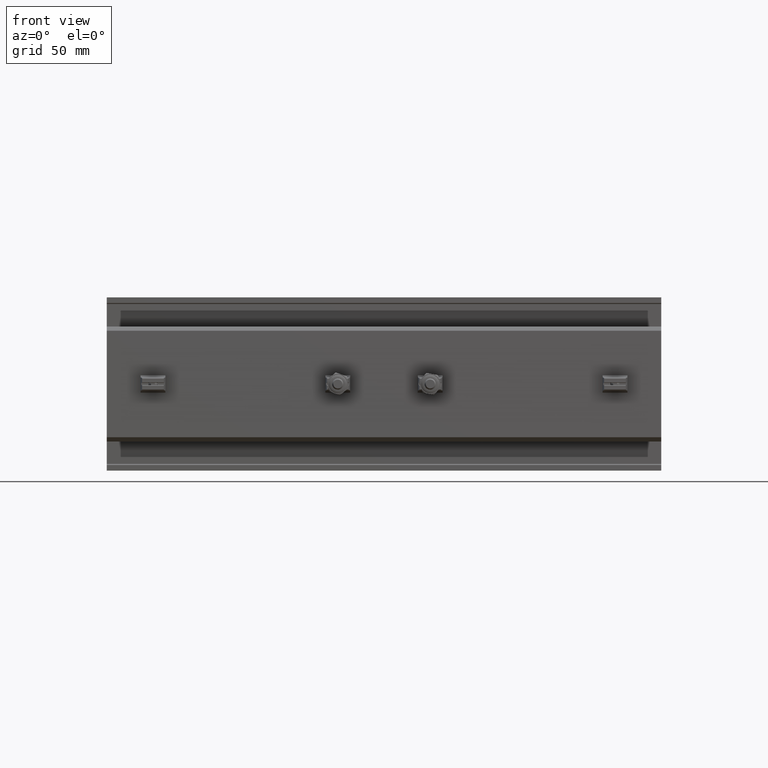
[diagram: clean part render]
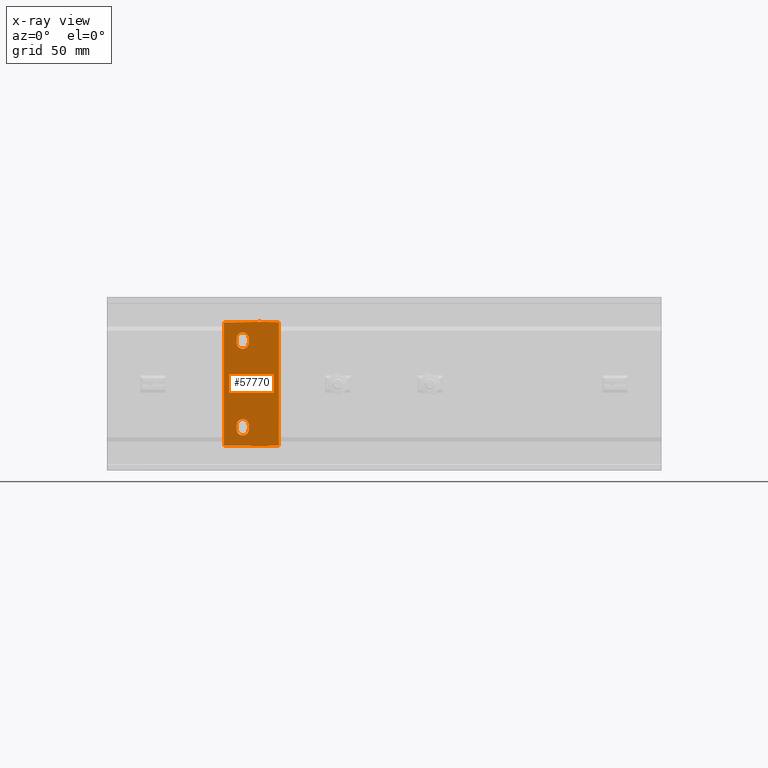
[diagram: x-ray — body ghosted, one internal face saturated and labeled with its STEP entity id]
A machine part, front view, then the same camera in x-ray: the body is ghosted and one INTERNAL B-rep face — a face not visible from any outside direction — is saturated and labeled: STEP entity #57770.
In plain terms, the highlighted planar face has unit normal (-0, 1, -0).
Its self-contained STEP definition (entity closure, byte-faithful):
#46 = CARTESIAN_POINT ( 'NONE',  ( 0.04719720991502716900, 5.779991205112370100E-018, -1.328926345110795300 ) ) ;
#47 = DIRECTION ( 'NONE',  ( 0.9998476951563912700, 1.224460279508132000E-016, 0.01745240643728355300 ) ) ;
#69 = CARTESIAN_POINT ( 'NONE',  ( -1.218750000000000000, -1.492538286460836600E-016, 1.375000000000000000 ) ) ;
#70 = DIRECTION ( 'NONE',  ( 0.0000000000000000000, 0.0000000000000000000, -1.000000000000000000 ) ) ;
#79 = CARTESIAN_POINT ( 'NONE',  ( -0.04768563061452055200, -5.839805489739568100E-018, -1.356907948244442800 ) ) ;
#80 = DIRECTION ( 'NONE',  ( 0.9998476951563912700, 1.224460279508132000E-016, -0.01745240643728355300 ) ) ;
#81 = CARTESIAN_POINT ( 'NONE',  ( -1.249454612298834600, -1.530140591631665200E-016, 1.335930992640425000 ) ) ;
#82 = DIRECTION ( 'NONE',  ( -0.9998476951563912700, -1.224460279508132000E-016, -0.01745240643728355300 ) ) ;
#802 = CARTESIAN_POINT ( 'NONE',  ( -0.5675000000000003400, -4.439252989704428000E-016, 0.8906250000000001100 ) ) ;
#807 = CARTESIAN_POINT ( 'NONE',  ( -0.3074999999999999400, -3.765788907378107100E-017, 0.8906249999999997800 ) ) ;
#811 = CARTESIAN_POINT ( 'NONE',  ( -0.03125000000000000000, -3.827021247335453400E-018, 1.330295646253299300 ) ) ;
#2075 = CARTESIAN_POINT ( 'NONE',  ( -0.5675000000000005600, -2.731847993664263200E-016, -0.9843750000000001100 ) ) ;
#2080 = CARTESIAN_POINT ( 'NONE',  ( -0.5675000000000005600, -3.073328992872296400E-016, -0.8906250000000000000 ) ) ;
#2094 = CARTESIAN_POINT ( 'NONE',  ( -0.3075000000000000500, -3.765788907378108300E-017, -0.9843750000000001100 ) ) ;
#4081 = CARTESIAN_POINT ( 'NONE',  ( -0.4375000000000001100, -4.780733988912460100E-016, 0.9843750000000001100 ) ) ;
#4083 = DIRECTION ( 'NONE',  ( 0.0000000000000000000, 1.000000000000000000, 9.106159978880879900E-017 ) ) ;
#4084 = DIRECTION ( 'NONE',  ( 0.0000000000000000000, -9.106159978880883600E-017, 1.000000000000000000 ) ) ;
#4129 = CARTESIAN_POINT ( 'NONE',  ( -0.4375000000000000600, -3.756290991288361700E-016, -3.412080610134867000E-032 ) ) ;
#4130 = DIRECTION ( 'NONE',  ( 0.0000000000000000000, 1.000000000000000000, 9.106159978880879900E-017 ) ) ;
#4131 = DIRECTION ( 'NONE',  ( 0.0000000000000000000, -9.106159978880894700E-017, 1.000000000000000000 ) ) ;
#4139 = CARTESIAN_POINT ( 'NONE',  ( -0.4375000000000003300, -3.073328992872296400E-016, -0.8906250000000000000 ) ) ;
#4140 = DIRECTION ( 'NONE',  ( 0.0000000000000000000, 1.000000000000000000, 9.106159978880879900E-017 ) ) ;
#4141 = DIRECTION ( 'NONE',  ( 0.0000000000000000000, -9.106159978880883600E-017, 1.000000000000000000 ) ) ;
#9583 = VERTEX_POINT ( 'NONE', #43195 ) ;
#9586 = VERTEX_POINT ( 'NONE', #43199 ) ;
#9610 = VERTEX_POINT ( 'NONE', #43223 ) ;
#9645 = VERTEX_POINT ( 'NONE', #43255 ) ;
#9655 = VERTEX_POINT ( 'NONE', #43266 ) ;
#9752 = VERTEX_POINT ( 'NONE', #43356 ) ;
#9783 = VERTEX_POINT ( 'NONE', #43386 ) ;
#9787 = VERTEX_POINT ( 'NONE', #43389 ) ;
#9791 = VERTEX_POINT ( 'NONE', #43393 ) ;
#9813 = VERTEX_POINT ( 'NONE', #43414 ) ;
#9826 = VERTEX_POINT ( 'NONE', #43426 ) ;
#9893 = VERTEX_POINT ( 'NONE', #43490 ) ;
#12657 = EDGE_LOOP ( 'NONE', ( #73470, #73475 ) ) ;
#12665 = EDGE_LOOP ( 'NONE', ( #18622, #18629, #18633, #18635, #18638 ) ) ;
#12668 = EDGE_LOOP ( 'NONE', ( #18594, #18592, #18607, #18616, #18618 ) ) ;
#12670 = EDGE_LOOP ( 'NONE', ( #73473, #73474, #73476, #73477, #73478, #73479 ) ) ;
#16317 = EDGE_CURVE ( 'NONE', #32429, #9813, #32468, .T. ) ;
#16321 = EDGE_CURVE ( 'NONE', #9826, #72972, #32495, .T. ) ;
#16322 = EDGE_CURVE ( 'NONE', #9791, #32429, #32499, .T. ) ;
#16324 = EDGE_CURVE ( 'NONE', #9586, #9645, #32519, .T. ) ;
#16325 = EDGE_CURVE ( 'NONE', #9752, #32425, #32517, .T. ) ;
#16327 = EDGE_CURVE ( 'NONE', #72958, #9655, #32528, .T. ) ;
#16330 = EDGE_CURVE ( 'NONE', #32420, #9783, #32535, .T. ) ;
#16331 = EDGE_CURVE ( 'NONE', #72972, #72953, #32545, .T. ) ;
#16333 = EDGE_CURVE ( 'NONE', #72953, #72958, #32540, .T. ) ;
#16334 = EDGE_CURVE ( 'NONE', #32425, #32420, #32555, .T. ) ;
#16336 = EDGE_CURVE ( 'NONE', #9783, #9610, #32562, .T. ) ;
#18592 = ORIENTED_EDGE ( 'NONE', *, *, #16330, .T. ) ;
#18594 = ORIENTED_EDGE ( 'NONE', *, *, #16334, .T. ) ;
#18607 = ORIENTED_EDGE ( 'NONE', *, *, #16336, .T. ) ;
#18616 = ORIENTED_EDGE ( 'NONE', *, *, #40593, .T. ) ;
#18618 = ORIENTED_EDGE ( 'NONE', *, *, #16325, .T. ) ;
#18622 = ORIENTED_EDGE ( 'NONE', *, *, #16331, .T. ) ;
#18629 = ORIENTED_EDGE ( 'NONE', *, *, #16333, .T. ) ;
#18633 = ORIENTED_EDGE ( 'NONE', *, *, #16327, .T. ) ;
#18635 = ORIENTED_EDGE ( 'NONE', *, *, #40623, .T. ) ;
#18638 = ORIENTED_EDGE ( 'NONE', *, *, #16321, .T. ) ;
#31199 = EDGE_CURVE ( 'NONE', #9893, #9791, #76548, .T. ) ;
#31206 = EDGE_CURVE ( 'NONE', #9583, #9787, #76561, .T. ) ;
#31210 = EDGE_CURVE ( 'NONE', #9787, #9893, #76567, .T. ) ;
#31211 = EDGE_CURVE ( 'NONE', #9813, #9583, #76569, .T. ) ;
#31447 = AXIS2_PLACEMENT_3D ( 'NONE', #43752, #43754, #43756 ) ;
#31448 = AXIS2_PLACEMENT_3D ( 'NONE', #43758, #43773, #43775 ) ;
#31449 = AXIS2_PLACEMENT_3D ( 'NONE', #43796, #43819, #43820 ) ;
#31450 = AXIS2_PLACEMENT_3D ( 'NONE', #43772, #43831, #43834 ) ;
#31451 = AXIS2_PLACEMENT_3D ( 'NONE', #43763, #43792, #43794 ) ;
#32420 = VERTEX_POINT ( 'NONE', #802 ) ;
#32425 = VERTEX_POINT ( 'NONE', #807 ) ;
#32429 = VERTEX_POINT ( 'NONE', #811 ) ;
#32468 = LINE ( 'NONE', #43700, #32473 ) ;
#32473 = VECTOR ( 'NONE', #43703, 39.37007874015748100 ) ;
#32490 = VECTOR ( 'NONE', #43742, 39.37007874015748100 ) ;
#32495 = LINE ( 'NONE', #43741, #32490 ) ;
#32499 = LINE ( 'NONE', #43740, #32504 ) ;
#32504 = VECTOR ( 'NONE', #43745, 39.37007874015748100 ) ;
#32506 = VECTOR ( 'NONE', #43761, 39.37007874015748100 ) ;
#32517 = LINE ( 'NONE', #43747, #32506 ) ;
#32519 = CIRCLE ( 'NONE', #31447, 0.1300000000000000900 ) ;
#32528 = CIRCLE ( 'NONE', #31448, 0.1300000000000002500 ) ;
#32535 = LINE ( 'NONE', #43785, #32537 ) ;
#32537 = VECTOR ( 'NONE', #43787, 39.37007874015748100 ) ;
#32540 = LINE ( 'NONE', #43811, #32547 ) ;
#32545 = CIRCLE ( 'NONE', #31451, 0.1300000000000002500 ) ;
#32547 = VECTOR ( 'NONE', #43812, 39.37007874015748100 ) ;
#32555 = CIRCLE ( 'NONE', #31449, 0.1300000000000002500 ) ;
#32562 = CIRCLE ( 'NONE', #31450, 0.1300000000000002500 ) ;
#40593 = EDGE_CURVE ( 'NONE', #9610, #9752, #76856, .T. ) ;
#40616 = EDGE_CURVE ( 'NONE', #9645, #9586, #76865, .T. ) ;
#40623 = EDGE_CURVE ( 'NONE', #9655, #9826, #76870, .T. ) ;
#43195 = CARTESIAN_POINT ( 'NONE',  ( -1.218750000000000000, -1.492538286460836600E-016, 1.336466943641697200 ) ) ;
#43199 = CARTESIAN_POINT ( 'NONE',  ( -0.4375000000000000600, -3.874671071013813800E-016, 0.1300000000000000900 ) ) ;
#43223 = CARTESIAN_POINT ( 'NONE',  ( -0.4375000000000001100, -4.899114068637912200E-016, 1.114375000000000300 ) ) ;
#43255 = CARTESIAN_POINT ( 'NONE',  ( -0.4375000000000000600, -3.637910911562910100E-016, -0.1300000000000000900 ) ) ;
#43266 = CARTESIAN_POINT ( 'NONE',  ( -0.4375000000000003300, -3.191709072597748000E-016, -0.7606249999999997700 ) ) ;
#43356 = CARTESIAN_POINT ( 'NONE',  ( -0.3074999999999999400, -4.780733988912460100E-016, 0.9843750000000001100 ) ) ;
#43386 = CARTESIAN_POINT ( 'NONE',  ( -0.5675000000000003400, -4.780733988912460100E-016, 0.9843750000000001100 ) ) ;
#43389 = CARTESIAN_POINT ( 'NONE',  ( -1.218750000000000000, -1.492538286460836600E-016, -1.336466943641697200 ) ) ;
#43393 = CARTESIAN_POINT ( 'NONE',  ( -0.03125000000000000000, -3.827021247335476500E-018, -1.330295646253301300 ) ) ;
#43414 = CARTESIAN_POINT ( 'NONE',  ( -0.8017766952966437500, -9.818932635259784100E-017, 1.343745239748628000 ) ) ;
#43426 = CARTESIAN_POINT ( 'NONE',  ( -0.3075000000000000500, -3.073328992872296400E-016, -0.8906250000000000000 ) ) ;
#43490 = CARTESIAN_POINT ( 'NONE',  ( -0.8017766952966418600, -9.818932635259764400E-017, -1.343745239748628000 ) ) ;
#43700 = CARTESIAN_POINT ( 'NONE',  ( -0.8023220829978050500, -9.825611708285001000E-017, 1.343754759526362100 ) ) ;
#43703 = DIRECTION ( 'NONE',  ( -0.9998476951563912700, -1.224460279508132000E-016, 0.01745240643728355300 ) ) ;
#43740 = CARTESIAN_POINT ( 'NONE',  ( -0.03125000000000000000, -3.827021247335476500E-018, 1.375000000000000000 ) ) ;
#43741 = CARTESIAN_POINT ( 'NONE',  ( -0.3075000000000000500, -3.073328992872296400E-016, -0.8906250000000000000 ) ) ;
#43742 = DIRECTION ( 'NONE',  ( -3.642463991552348500E-016, 3.642463991552348500E-016, -1.000000000000000000 ) ) ;
#43745 = DIRECTION ( 'NONE',  ( -0.0000000000000000000, -0.0000000000000000000, 1.000000000000000000 ) ) ;
#43747 = CARTESIAN_POINT ( 'NONE',  ( -0.3074999999999999400, -4.780733988912460100E-016, 0.9843750000000001100 ) ) ;
#43752 = CARTESIAN_POINT ( 'NONE',  ( -0.4375000000000000600, -3.756290991288361700E-016, -3.412080610134867000E-032 ) ) ;
#43754 = DIRECTION ( 'NONE',  ( 0.0000000000000000000, 1.000000000000000000, 9.106159978880879900E-017 ) ) ;
#43756 = DIRECTION ( 'NONE',  ( 0.0000000000000000000, -9.106159978880894700E-017, 1.000000000000000000 ) ) ;
#43758 = CARTESIAN_POINT ( 'NONE',  ( -0.4375000000000003300, -3.073328992872296400E-016, -0.8906250000000000000 ) ) ;
#43761 = DIRECTION ( 'NONE',  ( -3.642463991552343600E-016, 3.642463991552343600E-016, -1.000000000000000000 ) ) ;
#43763 = CARTESIAN_POINT ( 'NONE',  ( -0.4375000000000003300, -2.731847993664263200E-016, -0.9843750000000001100 ) ) ;
#43772 = CARTESIAN_POINT ( 'NONE',  ( -0.4375000000000001100, -4.780733988912460100E-016, 0.9843750000000001100 ) ) ;
#43773 = DIRECTION ( 'NONE',  ( 0.0000000000000000000, 1.000000000000000000, 9.106159978880879900E-017 ) ) ;
#43775 = DIRECTION ( 'NONE',  ( 0.0000000000000000000, -9.106159978880883600E-017, 1.000000000000000000 ) ) ;
#43785 = CARTESIAN_POINT ( 'NONE',  ( -0.5675000000000003400, -4.780733988912460100E-016, 0.9843750000000001100 ) ) ;
#43787 = DIRECTION ( 'NONE',  ( 7.284927983104707800E-016, -3.642463991552353900E-016, 1.000000000000000000 ) ) ;
#43792 = DIRECTION ( 'NONE',  ( 0.0000000000000000000, 1.000000000000000000, 9.106159978880879900E-017 ) ) ;
#43794 = DIRECTION ( 'NONE',  ( 0.0000000000000000000, -9.106159978880883600E-017, 1.000000000000000000 ) ) ;
#43796 = CARTESIAN_POINT ( 'NONE',  ( -0.4375000000000001700, -4.439252989704428000E-016, 0.8906250000000000000 ) ) ;
#43811 = CARTESIAN_POINT ( 'NONE',  ( -0.5675000000000005600, -3.073328992872296400E-016, -0.8906250000000000000 ) ) ;
#43812 = DIRECTION ( 'NONE',  ( -0.0000000000000000000, -3.642463991552348500E-016, 1.000000000000000000 ) ) ;
#43819 = DIRECTION ( 'NONE',  ( 0.0000000000000000000, 1.000000000000000000, 9.106159978880879900E-017 ) ) ;
#43820 = DIRECTION ( 'NONE',  ( 0.0000000000000000000, -9.106159978880883600E-017, 1.000000000000000000 ) ) ;
#43831 = DIRECTION ( 'NONE',  ( 0.0000000000000000000, 1.000000000000000000, 9.106159978880879900E-017 ) ) ;
#43834 = DIRECTION ( 'NONE',  ( 0.0000000000000000000, -9.106159978880883600E-017, 1.000000000000000000 ) ) ;
#57770 = ADVANCED_FACE ( 'NONE', ( #67196, #67206, #67210, #67214 ), #64659, .F. ) ;
#64659 = PLANE ( 'NONE',  #74160 ) ;
#64660 = CARTESIAN_POINT ( 'NONE',  ( 0.0000000000000000000, 0.0000000000000000000, 1.375000000000000000 ) ) ;
#64661 = DIRECTION ( 'NONE',  ( -1.224646799147352000E-016, 1.000000000000000000, 0.0000000000000000000 ) ) ;
#64662 = DIRECTION ( 'NONE',  ( -1.000000000000000000, -1.224646799147352000E-016, 0.0000000000000000000 ) ) ;
#67196 = FACE_BOUND ( 'NONE', #12657, .T. ) ;
#67206 = FACE_OUTER_BOUND ( 'NONE', #12670, .T. ) ;
#67210 = FACE_BOUND ( 'NONE', #12668, .T. ) ;
#67214 = FACE_BOUND ( 'NONE', #12665, .T. ) ;
#72953 = VERTEX_POINT ( 'NONE', #2075 ) ;
#72958 = VERTEX_POINT ( 'NONE', #2080 ) ;
#72972 = VERTEX_POINT ( 'NONE', #2094 ) ;
#73470 = ORIENTED_EDGE ( 'NONE', *, *, #16324, .T. ) ;
#73473 = ORIENTED_EDGE ( 'NONE', *, *, #31211, .T. ) ;
#73474 = ORIENTED_EDGE ( 'NONE', *, *, #31206, .T. ) ;
#73475 = ORIENTED_EDGE ( 'NONE', *, *, #40616, .T. ) ;
#73476 = ORIENTED_EDGE ( 'NONE', *, *, #31210, .T. ) ;
#73477 = ORIENTED_EDGE ( 'NONE', *, *, #31199, .T. ) ;
#73478 = ORIENTED_EDGE ( 'NONE', *, *, #16322, .T. ) ;
#73479 = ORIENTED_EDGE ( 'NONE', *, *, #16317, .T. ) ;
#73884 = AXIS2_PLACEMENT_3D ( 'NONE', #4081, #4083, #4084 ) ;
#73890 = AXIS2_PLACEMENT_3D ( 'NONE', #4129, #4130, #4131 ) ;
#73893 = AXIS2_PLACEMENT_3D ( 'NONE', #4139, #4140, #4141 ) ;
#74160 = AXIS2_PLACEMENT_3D ( 'NONE', #64660, #64661, #64662 ) ;
#76548 = LINE ( 'NONE', #46, #76549 ) ;
#76549 = VECTOR ( 'NONE', #47, 39.37007874015748100 ) ;
#76561 = LINE ( 'NONE', #69, #76562 ) ;
#76562 = VECTOR ( 'NONE', #70, 39.37007874015748100 ) ;
#76567 = LINE ( 'NONE', #79, #76568 ) ;
#76568 = VECTOR ( 'NONE', #80, 39.37007874015748100 ) ;
#76569 = LINE ( 'NONE', #81, #76570 ) ;
#76570 = VECTOR ( 'NONE', #82, 39.37007874015748100 ) ;
#76856 = CIRCLE ( 'NONE', #73884, 0.1300000000000002500 ) ;
#76865 = CIRCLE ( 'NONE', #73890, 0.1300000000000000900 ) ;
#76870 = CIRCLE ( 'NONE', #73893, 0.1300000000000002500 ) ;